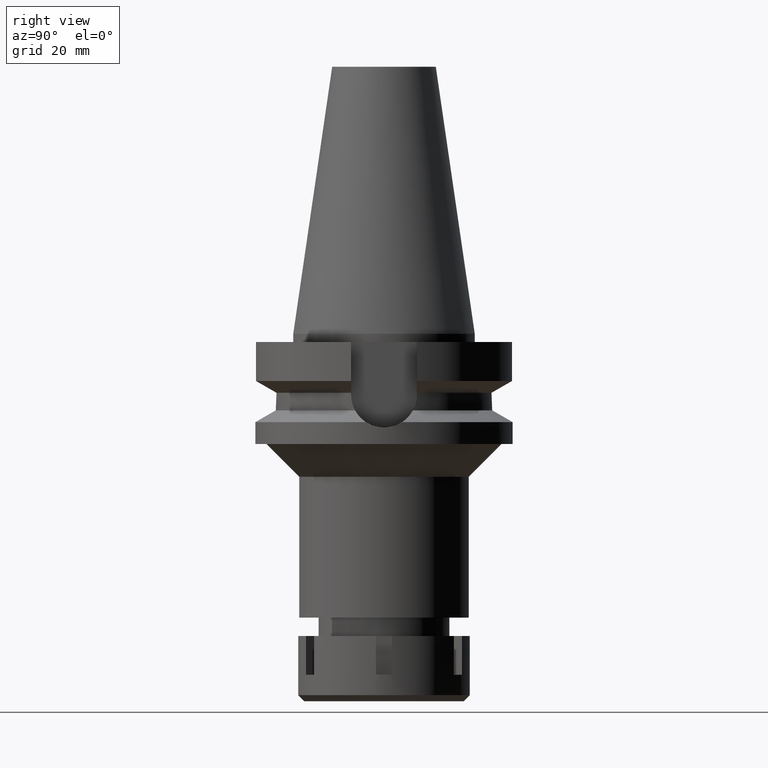
[diagram: clean part render]
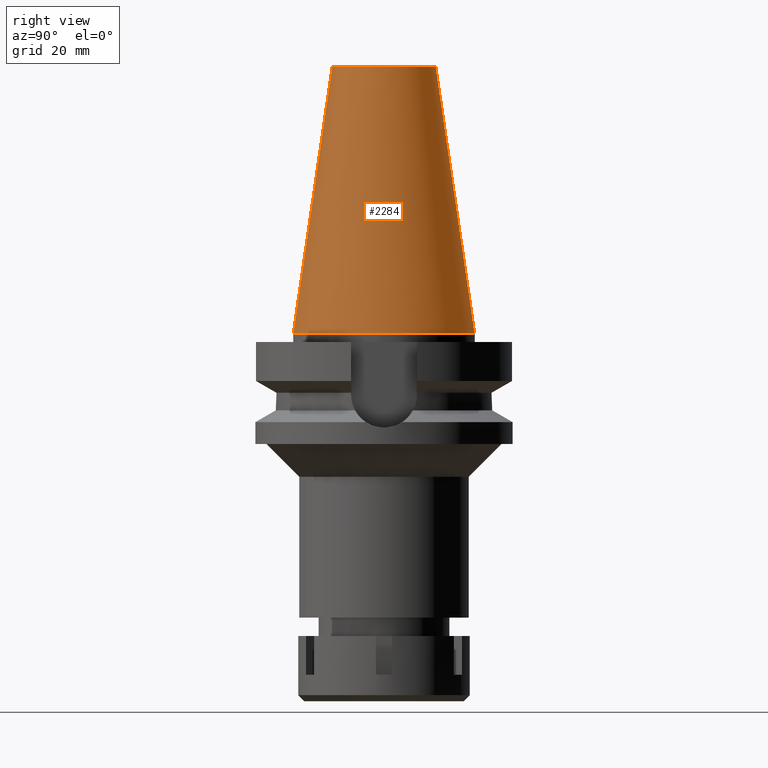
[diagram: same view with one face highlighted and labeled with its STEP entity id]
A machine part, right view. The second image highlights one B-rep face of the part: STEP entity #2284.
In plain terms, the highlighted conical surface has half-angle 8.297 deg.
Its self-contained STEP definition (entity closure, byte-faithful):
#39 = AXIS2_PLACEMENT_3D ( 'NONE', #571, #296, #2451 ) ;
#142 = CARTESIAN_POINT ( 'NONE',  ( 0.0000000000000000000, 1.625106302469000024E-14, 32.70000000000000284 ) ) ;
#198 = EDGE_LOOP ( 'NONE', ( #1571, #655, #1961, #2492 ) ) ;
#204 = LINE ( 'NONE', #1329, #1921 ) ;
#296 = DIRECTION ( 'NONE',  ( 0.0000000000000000000, 0.0000000000000000000, -1.000000000000000000 ) ) ;
#436 = DIRECTION ( 'NONE',  ( 0.0000000000000000000, -1.000000000000000000, 0.0000000000000000000 ) ) ;
#441 = EDGE_CURVE ( 'NONE', #2503, #1849, #204, .T. ) ;
#483 = CARTESIAN_POINT ( 'NONE',  ( 0.0000000000000000000, 22.22500000000000142, 3.552713678800999489E-14 ) ) ;
#571 = CARTESIAN_POINT ( 'NONE',  ( 0.0000000000000000000, 1.625106302469000024E-14, 0.0000000000000000000 ) ) ;
#573 = EDGE_CURVE ( 'NONE', #1849, #2033, #3352, .T. ) ;
#618 = CARTESIAN_POINT ( 'NONE',  ( 0.0000000000000000000, -22.22500000000000142, 3.552713678800999489E-14 ) ) ;
#655 = ORIENTED_EDGE ( 'NONE', *, *, #2147, .T. ) ;
#893 = DIRECTION ( 'NONE',  ( 0.0000000000000000000, -0.1443043893539925626, -0.9895333461855498891 ) ) ;
#896 = CONICAL_SURFACE ( 'NONE', #1800, 17.45633449714999941, 0.1448099680379422438 ) ;
#1151 = CARTESIAN_POINT ( 'NONE',  ( 0.0000000000000000000, 12.68766899429999917, 65.40000000000000568 ) ) ;
#1329 = CARTESIAN_POINT ( 'NONE',  ( 0.0000000000000000000, 12.68766899429999917, 65.40000000000000568 ) ) ;
#1376 = DIRECTION ( 'NONE',  ( 0.0000000000000000000, 1.000000000000000000, 0.0000000000000000000 ) ) ;
#1571 = ORIENTED_EDGE ( 'NONE', *, *, #2443, .T. ) ;
#1800 = AXIS2_PLACEMENT_3D ( 'NONE', #142, #2862, #436 ) ;
#1849 = VERTEX_POINT ( 'NONE', #483 ) ;
#1921 = VECTOR ( 'NONE', #3196, 1000.000000000000114 ) ;
#1961 = ORIENTED_EDGE ( 'NONE', *, *, #573, .F. ) ;
#2033 = VERTEX_POINT ( 'NONE', #618 ) ;
#2147 = EDGE_CURVE ( 'NONE', #2404, #2033, #2245, .T. ) ;
#2245 = LINE ( 'NONE', #3406, #2643 ) ;
#2258 = CIRCLE ( 'NONE', #2695, 12.68766899429999917 ) ;
#2284 = ADVANCED_FACE ( 'NONE', ( #2564 ), #896, .T. ) ;
#2404 = VERTEX_POINT ( 'NONE', #3427 ) ;
#2443 = EDGE_CURVE ( 'NONE', #2503, #2404, #2258, .T. ) ;
#2451 = DIRECTION ( 'NONE',  ( 0.0000000000000000000, 1.000000000000000000, 0.0000000000000000000 ) ) ;
#2492 = ORIENTED_EDGE ( 'NONE', *, *, #441, .F. ) ;
#2503 = VERTEX_POINT ( 'NONE', #1151 ) ;
#2564 = FACE_OUTER_BOUND ( 'NONE', #198, .T. ) ;
#2643 = VECTOR ( 'NONE', #893, 1000.000000000000114 ) ;
#2695 = AXIS2_PLACEMENT_3D ( 'NONE', #3029, #3241, #1376 ) ;
#2862 = DIRECTION ( 'NONE',  ( 0.0000000000000000000, 0.0000000000000000000, -1.000000000000000000 ) ) ;
#3029 = CARTESIAN_POINT ( 'NONE',  ( 0.0000000000000000000, 1.625106302469000024E-14, 65.40000000000000568 ) ) ;
#3196 = DIRECTION ( 'NONE',  ( 0.0000000000000000000, 0.1443043893539925626, -0.9895333461855498891 ) ) ;
#3241 = DIRECTION ( 'NONE',  ( 0.0000000000000000000, 0.0000000000000000000, -1.000000000000000000 ) ) ;
#3352 = CIRCLE ( 'NONE', #39, 22.22500000000000142 ) ;
#3406 = CARTESIAN_POINT ( 'NONE',  ( 0.0000000000000000000, -12.68766899429999917, 65.40000000000000568 ) ) ;
#3427 = CARTESIAN_POINT ( 'NONE',  ( 0.0000000000000000000, -12.68766899429999917, 65.40000000000000568 ) ) ;